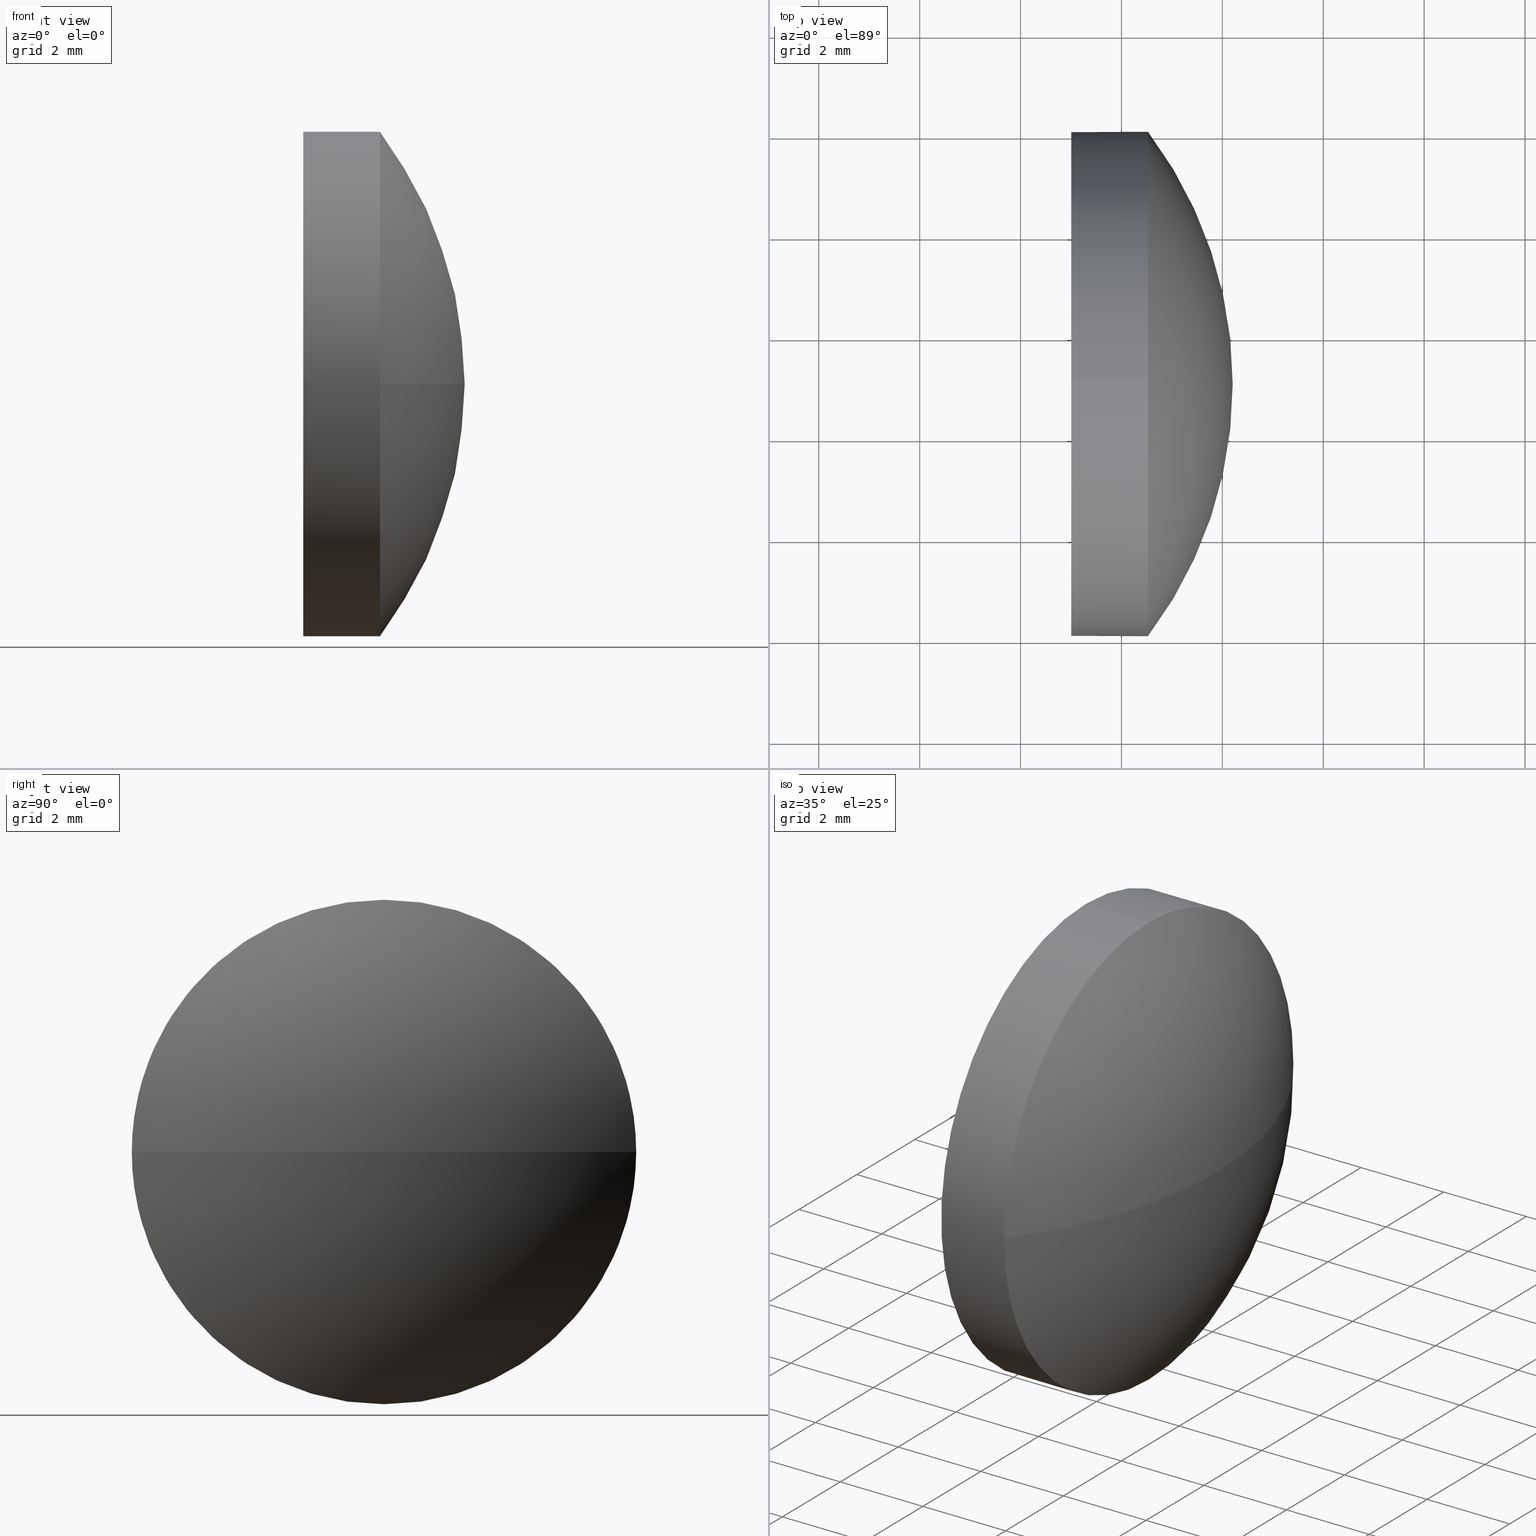
[diagram: canonical four-view strip — front | top / right | iso, engineering-drawing reading convention]
A machine part, canonical four-view strip (front | top / right | iso — engineering-drawing reading convention). The complete STEP part file that produces these views, byte-faithful:
ISO-10303-21;
HEADER;
FILE_DESCRIPTION (( 'STEP AP214' ),
    '1' );
FILE_NAME ('100187.STEP',
    '2019-05-21T06:00:49',
    ( '' ),
    ( '' ),
    'SwSTEP 2.0',
    'SolidWorks 2016',
    '' );
FILE_SCHEMA (( 'AUTOMOTIVE_DESIGN' ));
ENDSEC;

DATA;
#1 = AXIS2_PLACEMENT_3D ( 'NONE', #172, #143, #82 ) ;
#2 = EDGE_LOOP ( 'NONE', ( #108, #89, #33, #50, #153 ) ) ;
#3 = VECTOR ( 'NONE', #159, 1000.000000000000000 ) ;
#4 = CIRCLE ( 'NONE', #1, 4.999999999999997300 ) ;
#5 = LINE ( 'NONE', #14, #36 ) ;
#6 = ORIENTED_EDGE ( 'NONE', *, *, #124, .F. ) ;
#7 = PRODUCT ( '100187', '100187', '', ( #29 ) ) ;
#8 = PLANE ( 'NONE',  #17 ) ;
#9 = FACE_OUTER_BOUND ( 'NONE', #2, .T. ) ;
#10 = CARTESIAN_POINT ( 'NONE',  ( 522.2079759984651400, 17.05461516330814200, 0.0000000000000000000 ) ) ;
#11 = SURFACE_STYLE_USAGE ( .BOTH. , #84 ) ;
#12 = DIRECTION ( 'NONE',  ( 0.0000000000000000000, -1.000000000000000000, 0.0000000000000000000 ) ) ;
#13 = PRODUCT_DEFINITION_SHAPE ( 'NONE', 'NONE',  #52 ) ;
#14 = CARTESIAN_POINT ( 'NONE',  ( 522.2079759984651400, 17.05461516330814200, 4.999999999999997300 ) ) ;
#15 = ADVANCED_FACE ( 'NONE', ( #104 ), #8, .F. ) ;
#16 = EDGE_CURVE ( 'NONE', #162, #120, #4, .T. ) ;
#17 = AXIS2_PLACEMENT_3D ( 'NONE', #158, #20, #85 ) ;
#18 = EDGE_LOOP ( 'NONE', ( #71, #167, #6, #54, #107 ) ) ;
#19 = SPHERICAL_SURFACE ( 'NONE', #164, 8.280476190476205600 ) ;
#20 = DIRECTION ( 'NONE',  ( 1.000000000000000000, 0.0000000000000000000, 0.0000000000000000000 ) ) ;
#21 = CARTESIAN_POINT ( 'NONE',  ( 526.2056482525305200, 17.05461516330817800, 0.0000000000000000000 ) ) ;
#22 = ORIENTED_EDGE ( 'NONE', *, *, #166, .F. ) ;
#23 = PRESENTATION_LAYER_ASSIGNMENT (  '', '', ( #34 ) ) ;
#24 = APPLICATION_PROTOCOL_DEFINITION ( 'draft international standard', 'automotive_design', 1998, #115 ) ;
#25 = DIRECTION ( 'NONE',  ( 0.0000000000000000000, 0.0000000000000000000, 1.000000000000000000 ) ) ;
#26 =( LENGTH_UNIT ( ) NAMED_UNIT ( * ) SI_UNIT ( .MILLI., .METRE. ) );
#27 = APPLICATION_CONTEXT ( 'automotive_design' ) ;
#28 = CARTESIAN_POINT ( 'NONE',  ( 523.0056482525305900, 17.05461516330814200, -4.999999999999997300 ) ) ;
#29 = PRODUCT_CONTEXT ( 'NONE', #27, 'mechanical' ) ;
#30 = ADVANCED_FACE ( 'NONE', ( #165 ), #47, .T. ) ;
#31 = FACE_OUTER_BOUND ( 'NONE', #134, .T. ) ;
#32 =( GEOMETRIC_REPRESENTATION_CONTEXT ( 3 ) GLOBAL_UNCERTAINTY_ASSIGNED_CONTEXT ( ( #136 ) ) GLOBAL_UNIT_ASSIGNED_CONTEXT ( ( #130, #86, #62 ) ) REPRESENTATION_CONTEXT ( 'NONE', 'WORKASPACE' ) );
#33 = ORIENTED_EDGE ( 'NONE', *, *, #142, .T. ) ;
#34 = STYLED_ITEM ( 'NONE', ( #163 ), #171 ) ;
#35 = EDGE_CURVE ( 'NONE', #83, #120, #70, .T. ) ;
#36 = VECTOR ( 'NONE', #87, 1000.000000000000000 ) ;
#37 = STYLED_ITEM ( 'NONE', ( #75 ), #92 ) ;
#38 = EDGE_LOOP ( 'NONE', ( #112, #140 ) ) ;
#39 =( LENGTH_UNIT ( ) NAMED_UNIT ( * ) SI_UNIT ( .MILLI., .METRE. ) );
#40 = CARTESIAN_POINT ( 'NONE',  ( 524.5256482525305700, 17.05461516330814200, 0.0000000000000000000 ) ) ;
#41 = FILL_AREA_STYLE_COLOUR ( '', #141 ) ;
#42 = ORIENTED_EDGE ( 'NONE', *, *, #59, .T. ) ;
#43 = CARTESIAN_POINT ( 'NONE',  ( 0.0000000000000000000, 0.0000000000000000000, 0.0000000000000000000 ) ) ;
#44 = CARTESIAN_POINT ( 'NONE',  ( 523.0056482525305900, 17.05461516330814200, 0.0000000000000000000 ) ) ;
#45 = CARTESIAN_POINT ( 'NONE',  ( 524.5256482525305700, 22.05461516330816000, 6.123233995736740600E-016 ) ) ;
#46 = AXIS2_PLACEMENT_3D ( 'NONE', #74, #175, #111 ) ;
#47 = CYLINDRICAL_SURFACE ( 'NONE', #109, 4.999999999999997300 ) ;
#48 = SPHERICAL_SURFACE ( 'NONE', #94, 8.280476190476205600 ) ;
#49 = EDGE_CURVE ( 'NONE', #174, #67, #138, .T. ) ;
#50 = ORIENTED_EDGE ( 'NONE', *, *, #101, .T. ) ;
#51 = FACE_OUTER_BOUND ( 'NONE', #60, .T. ) ;
#52 = PRODUCT_DEFINITION ( 'δ֪', '', #110, #170 ) ;
#53 = CARTESIAN_POINT ( 'NONE',  ( 517.9251720620543400, 17.05461516330817800, 0.0000000000000000000 ) ) ;
#54 = ORIENTED_EDGE ( 'NONE', *, *, #101, .F. ) ;
#55 = CARTESIAN_POINT ( 'NONE',  ( 524.5256482525305700, 17.05461516330814200, -4.999999999999997300 ) ) ;
#56 = PRESENTATION_LAYER_ASSIGNMENT (  '', '', ( #37 ) ) ;
#57 = CARTESIAN_POINT ( 'NONE',  ( 523.0056482525305900, 17.05461516330814200, 4.999999999999997300 ) ) ;
#58 = UNCERTAINTY_MEASURE_WITH_UNIT (LENGTH_MEASURE( 1.000000000000000100E-005 ), #39, 'distance_accuracy_value', 'NONE');
#59 = EDGE_CURVE ( 'NONE', #83, #183, #97, .T. ) ;
#60 = EDGE_LOOP ( 'NONE', ( #95, #73, #169, #100 ) ) ;
#61 = CIRCLE ( 'NONE', #139, 4.999999999999997300 ) ;
#62 =( NAMED_UNIT ( * ) SI_UNIT ( $, .STERADIAN. ) SOLID_ANGLE_UNIT ( ) );
#63 = APPLICATION_PROTOCOL_DEFINITION ( 'draft international standard', 'automotive_design', 1998, #27 ) ;
#64 = DIRECTION ( 'NONE',  ( 0.0000000000000000000, 0.0000000000000000000, -1.000000000000000000 ) ) ;
#65 = DIRECTION ( 'NONE',  ( 0.0000000000000000000, 0.0000000000000000000, 1.000000000000000000 ) ) ;
#66 = DIRECTION ( 'NONE',  ( -1.000000000000000000, -0.0000000000000000000, -0.0000000000000000000 ) ) ;
#67 = VERTEX_POINT ( 'NONE', #57 ) ;
#68 = MECHANICAL_DESIGN_GEOMETRIC_PRESENTATION_REPRESENTATION (  '', ( #34 ), #32 ) ;
#69 = EDGE_CURVE ( 'NONE', #93, #183, #61, .T. ) ;
#70 = CIRCLE ( 'NONE', #46, 8.280476190476205600 ) ;
#71 = ORIENTED_EDGE ( 'NONE', *, *, #166, .T. ) ;
#72 = CYLINDRICAL_SURFACE ( 'NONE', #154, 4.999999999999997300 ) ;
#73 = ORIENTED_EDGE ( 'NONE', *, *, #35, .T. ) ;
#74 = CARTESIAN_POINT ( 'NONE',  ( 517.9251720620543400, 17.05461516330817800, 0.0000000000000000000 ) ) ;
#75 = PRESENTATION_STYLE_ASSIGNMENT (( #117 ) ) ;
#76 = UNCERTAINTY_MEASURE_WITH_UNIT (LENGTH_MEASURE( 1.000000000000000100E-005 ), #26, 'distance_accuracy_value', 'NONE');
#77 = MECHANICAL_DESIGN_GEOMETRIC_PRESENTATION_REPRESENTATION (  '', ( #37 ), #81 ) ;
#78 = CARTESIAN_POINT ( 'NONE',  ( 524.5256482525305700, 17.05461516330814200, 4.999999999999997300 ) ) ;
#79 = ORIENTED_EDGE ( 'NONE', *, *, #35, .F. ) ;
#80 = SURFACE_STYLE_FILL_AREA ( #131 ) ;
#81 =( GEOMETRIC_REPRESENTATION_CONTEXT ( 3 ) GLOBAL_UNCERTAINTY_ASSIGNED_CONTEXT ( ( #76 ) ) GLOBAL_UNIT_ASSIGNED_CONTEXT ( ( #26, #90, #181 ) ) REPRESENTATION_CONTEXT ( 'NONE', 'WORKASPACE' ) );
#82 = DIRECTION ( 'NONE',  ( 0.0000000000000000000, 0.0000000000000000000, 1.000000000000000000 ) ) ;
#83 = VERTEX_POINT ( 'NONE', #21 ) ;
#84 = SURFACE_SIDE_STYLE ('',( #185 ) ) ;
#85 = DIRECTION ( 'NONE',  ( 0.0000000000000000000, 0.0000000000000000000, -1.000000000000000000 ) ) ;
#86 =( NAMED_UNIT ( * ) PLANE_ANGLE_UNIT ( ) SI_UNIT ( $, .RADIAN. ) );
#87 = DIRECTION ( 'NONE',  ( -1.000000000000000000, -0.0000000000000000000, -0.0000000000000000000 ) ) ;
#88 = DIRECTION ( 'NONE',  ( -1.000000000000000000, -0.0000000000000000000, -0.0000000000000000000 ) ) ;
#89 = ORIENTED_EDGE ( 'NONE', *, *, #69, .T. ) ;
#90 =( NAMED_UNIT ( * ) PLANE_ANGLE_UNIT ( ) SI_UNIT ( $, .RADIAN. ) );
#91 = AXIS2_PLACEMENT_3D ( 'NONE', #184, #88, #65 ) ;
#92 = MANIFOLD_SOLID_BREP ( '��ת2', #128 ) ;
#93 = VERTEX_POINT ( 'NONE', #55 ) ;
#94 = AXIS2_PLACEMENT_3D ( 'NONE', #133, #118, #12 ) ;
#95 = ORIENTED_EDGE ( 'NONE', *, *, #59, .F. ) ;
#96 = COLOUR_RGB ( '',1.000000000000000000, 1.000000000000000000, 1.000000000000000000 ) ;
#97 = CIRCLE ( 'NONE', #135, 8.280476190476227000 ) ;
#98 = AXIS2_PLACEMENT_3D ( 'NONE', #44, #186, #106 ) ;
#99 = DIRECTION ( 'NONE',  ( -1.000000000000000000, -0.0000000000000000000, -0.0000000000000000000 ) ) ;
#100 = ORIENTED_EDGE ( 'NONE', *, *, #142, .F. ) ;
#101 = EDGE_CURVE ( 'NONE', #162, #67, #5, .T. ) ;
#102 = DIRECTION ( 'NONE',  ( 1.000000000000000000, 0.0000000000000000000, 0.0000000000000000000 ) ) ;
#103 = DIRECTION ( 'NONE',  ( 0.0000000000000000000, 0.0000000000000000000, 1.000000000000000000 ) ) ;
#104 = FACE_OUTER_BOUND ( 'NONE', #38, .T. ) ;
#105 = AXIS2_PLACEMENT_3D ( 'NONE', #161, #66, #103 ) ;
#106 = DIRECTION ( 'NONE',  ( 0.0000000000000000000, 0.0000000000000000000, 1.000000000000000000 ) ) ;
#107 = ORIENTED_EDGE ( 'NONE', *, *, #16, .T. ) ;
#108 = ORIENTED_EDGE ( 'NONE', *, *, #179, .F. ) ;
#109 = AXIS2_PLACEMENT_3D ( 'NONE', #146, #129, #156 ) ;
#110 = PRODUCT_DEFINITION_FORMATION_WITH_SPECIFIED_SOURCE ( '�κ�', '', #7, .NOT_KNOWN. ) ;
#111 = DIRECTION ( 'NONE',  ( 0.0000000000000000000, -1.000000000000000000, -1.224646799147353500E-016 ) ) ;
#112 = ORIENTED_EDGE ( 'NONE', *, *, #124, .T. ) ;
#113 = SURFACE_SIDE_STYLE ('',( #80 ) ) ;
#114 = DIRECTION ( 'NONE',  ( 0.0000000000000000000, 0.0000000000000000000, 1.000000000000000000 ) ) ;
#115 = APPLICATION_CONTEXT ( 'automotive_design' ) ;
#116 = FILL_AREA_STYLE_COLOUR ( '', #96 ) ;
#117 = SURFACE_STYLE_USAGE ( .BOTH. , #113 ) ;
#118 = DIRECTION ( 'NONE',  ( 0.0000000000000000000, 0.0000000000000000000, 1.000000000000000000 ) ) ;
#119 = CARTESIAN_POINT ( 'NONE',  ( 517.9251720620543400, 17.05461516330817800, 0.0000000000000000000 ) ) ;
#120 = VERTEX_POINT ( 'NONE', #45 ) ;
#121 = SHAPE_DEFINITION_REPRESENTATION ( #13, #171 ) ;
#122 = CIRCLE ( 'NONE', #91, 4.999999999999997300 ) ;
#123 = AXIS2_PLACEMENT_3D ( 'NONE', #127, #99, #114 ) ;
#124 = EDGE_CURVE ( 'NONE', #67, #174, #182, .T. ) ;
#125 = ADVANCED_FACE ( 'NONE', ( #31 ), #19, .T. ) ;
#126 = ORIENTED_EDGE ( 'NONE', *, *, #69, .F. ) ;
#127 = CARTESIAN_POINT ( 'NONE',  ( 523.0056482525305900, 17.05461516330814200, 0.0000000000000000000 ) ) ;
#128 = CLOSED_SHELL ( 'NONE', ( #30, #137, #125, #150, #15 ) ) ;
#129 = DIRECTION ( 'NONE',  ( -1.000000000000000000, -0.0000000000000000000, -0.0000000000000000000 ) ) ;
#130 =( LENGTH_UNIT ( ) NAMED_UNIT ( * ) SI_UNIT ( .MILLI., .METRE. ) );
#131 = FILL_AREA_STYLE ('',( #116 ) ) ;
#132 = CARTESIAN_POINT ( 'NONE',  ( 522.2079759984651400, 17.05461516330814200, -4.999999999999997300 ) ) ;
#133 = CARTESIAN_POINT ( 'NONE',  ( 517.9251720620543400, 17.05461516330817800, 0.0000000000000000000 ) ) ;
#134 = EDGE_LOOP ( 'NONE', ( #79, #42, #126, #22 ) ) ;
#135 = AXIS2_PLACEMENT_3D ( 'NONE', #53, #64, #176 ) ;
#136 = UNCERTAINTY_MEASURE_WITH_UNIT (LENGTH_MEASURE( 1.000000000000000100E-005 ), #130, 'distance_accuracy_value', 'NONE');
#137 = ADVANCED_FACE ( 'NONE', ( #51 ), #48, .T. ) ;
#138 = CIRCLE ( 'NONE', #123, 4.999999999999997300 ) ;
#139 = AXIS2_PLACEMENT_3D ( 'NONE', #40, #147, #25 ) ;
#140 = ORIENTED_EDGE ( 'NONE', *, *, #49, .T. ) ;
#141 = COLOUR_RGB ( '',1.000000000000000000, 1.000000000000000000, 1.000000000000000000 ) ;
#142 = EDGE_CURVE ( 'NONE', #183, #162, #157, .T. ) ;
#143 = DIRECTION ( 'NONE',  ( -1.000000000000000000, -0.0000000000000000000, -0.0000000000000000000 ) ) ;
#144 = AXIS2_PLACEMENT_3D ( 'NONE', #43, #180, #102 ) ;
#145 =( NAMED_UNIT ( * ) SI_UNIT ( $, .STERADIAN. ) SOLID_ANGLE_UNIT ( ) );
#146 = CARTESIAN_POINT ( 'NONE',  ( 522.2079759984651400, 17.05461516330814200, 0.0000000000000000000 ) ) ;
#147 = DIRECTION ( 'NONE',  ( -1.000000000000000000, -0.0000000000000000000, -0.0000000000000000000 ) ) ;
#148 = DIRECTION ( 'NONE',  ( 0.0000000000000000000, -1.000000000000000000, 0.0000000000000000000 ) ) ;
#149 = CARTESIAN_POINT ( 'NONE',  ( 524.5256482525305700, 12.05461516330816400, 0.0000000000000000000 ) ) ;
#150 = ADVANCED_FACE ( 'NONE', ( #9 ), #72, .T. ) ;
#151 = DIRECTION ( 'NONE',  ( -1.000000000000000000, -0.0000000000000000000, -0.0000000000000000000 ) ) ;
#152 =( GEOMETRIC_REPRESENTATION_CONTEXT ( 3 ) GLOBAL_UNCERTAINTY_ASSIGNED_CONTEXT ( ( #58 ) ) GLOBAL_UNIT_ASSIGNED_CONTEXT ( ( #39, #173, #145 ) ) REPRESENTATION_CONTEXT ( 'NONE', 'WORKASPACE' ) );
#153 = ORIENTED_EDGE ( 'NONE', *, *, #49, .F. ) ;
#154 = AXIS2_PLACEMENT_3D ( 'NONE', #10, #151, #160 ) ;
#155 = LINE ( 'NONE', #132, #3 ) ;
#156 = DIRECTION ( 'NONE',  ( 0.0000000000000000000, 0.0000000000000000000, 1.000000000000000000 ) ) ;
#157 = CIRCLE ( 'NONE', #105, 4.999999999999997300 ) ;
#158 = CARTESIAN_POINT ( 'NONE',  ( 523.0056482525305900, 17.05461516330814200, 0.0000000000000000000 ) ) ;
#159 = DIRECTION ( 'NONE',  ( -1.000000000000000000, -0.0000000000000000000, -0.0000000000000000000 ) ) ;
#160 = DIRECTION ( 'NONE',  ( 0.0000000000000000000, 0.0000000000000000000, 1.000000000000000000 ) ) ;
#161 = CARTESIAN_POINT ( 'NONE',  ( 524.5256482525305700, 17.05461516330814200, 0.0000000000000000000 ) ) ;
#162 = VERTEX_POINT ( 'NONE', #78 ) ;
#163 = PRESENTATION_STYLE_ASSIGNMENT (( #11 ) ) ;
#164 = AXIS2_PLACEMENT_3D ( 'NONE', #119, #178, #148 ) ;
#165 = FACE_OUTER_BOUND ( 'NONE', #18, .T. ) ;
#166 = EDGE_CURVE ( 'NONE', #120, #93, #122, .T. ) ;
#167 = ORIENTED_EDGE ( 'NONE', *, *, #179, .T. ) ;
#168 = PRODUCT_RELATED_PRODUCT_CATEGORY ( 'part', '', ( #7 ) ) ;
#169 = ORIENTED_EDGE ( 'NONE', *, *, #16, .F. ) ;
#170 = PRODUCT_DEFINITION_CONTEXT ( 'detailed design', #115, 'design' ) ;
#171 = ADVANCED_BREP_SHAPE_REPRESENTATION ( '100187', ( #92, #144 ), #152 ) ;
#172 = CARTESIAN_POINT ( 'NONE',  ( 524.5256482525305700, 17.05461516330814200, 0.0000000000000000000 ) ) ;
#173 =( NAMED_UNIT ( * ) PLANE_ANGLE_UNIT ( ) SI_UNIT ( $, .RADIAN. ) );
#174 = VERTEX_POINT ( 'NONE', #28 ) ;
#175 = DIRECTION ( 'NONE',  ( 0.0000000000000000000, -1.224646799147353200E-016, 1.000000000000000000 ) ) ;
#176 = DIRECTION ( 'NONE',  ( -1.000000000000000000, 0.0000000000000000000, 0.0000000000000000000 ) ) ;
#177 = FILL_AREA_STYLE ('',( #41 ) ) ;
#178 = DIRECTION ( 'NONE',  ( 0.0000000000000000000, 0.0000000000000000000, 1.000000000000000000 ) ) ;
#179 = EDGE_CURVE ( 'NONE', #93, #174, #155, .T. ) ;
#180 = DIRECTION ( 'NONE',  ( 0.0000000000000000000, 0.0000000000000000000, 1.000000000000000000 ) ) ;
#181 =( NAMED_UNIT ( * ) SI_UNIT ( $, .STERADIAN. ) SOLID_ANGLE_UNIT ( ) );
#182 = CIRCLE ( 'NONE', #98, 4.999999999999997300 ) ;
#183 = VERTEX_POINT ( 'NONE', #149 ) ;
#184 = CARTESIAN_POINT ( 'NONE',  ( 524.5256482525305700, 17.05461516330814200, 0.0000000000000000000 ) ) ;
#185 = SURFACE_STYLE_FILL_AREA ( #177 ) ;
#186 = DIRECTION ( 'NONE',  ( -1.000000000000000000, -0.0000000000000000000, -0.0000000000000000000 ) ) ;
ENDSEC;
END-ISO-10303-21;
